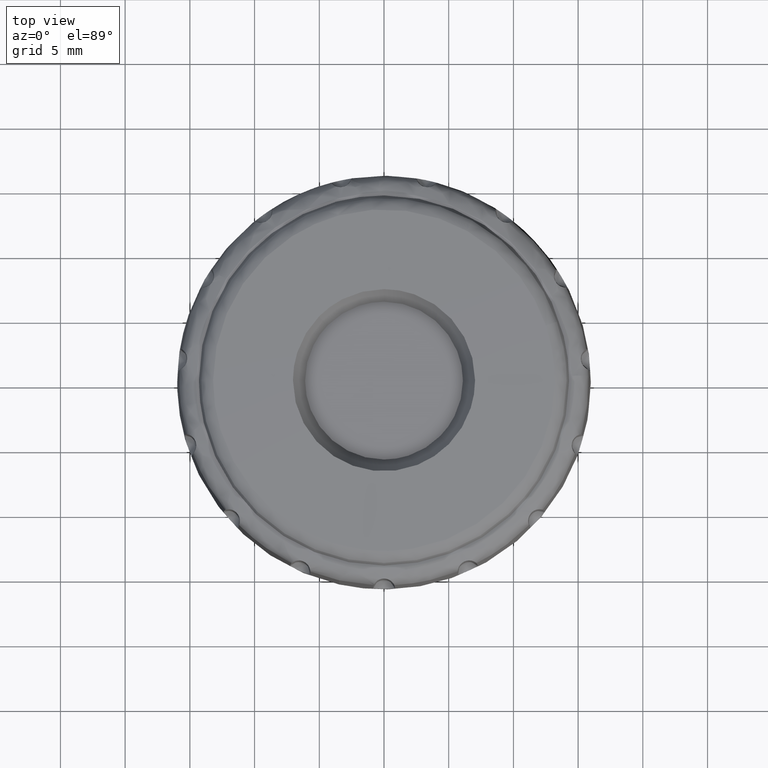
[diagram: clean part render]
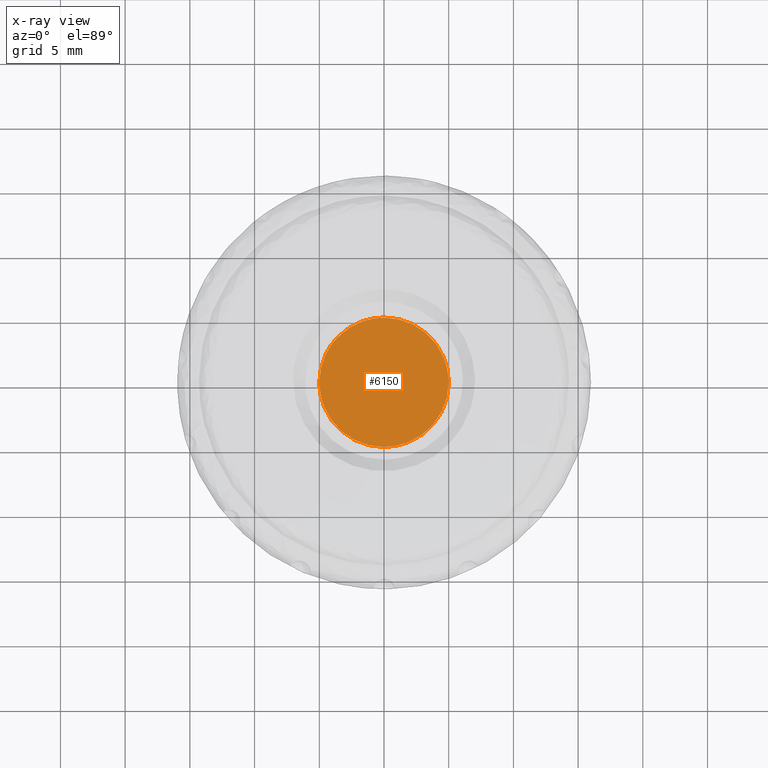
[diagram: x-ray — body ghosted, one internal face saturated and labeled with its STEP entity id]
A machine part, top view, then the same camera in x-ray: the body is ghosted and one INTERNAL B-rep face — a face not visible from any outside direction — is saturated and labeled: STEP entity #6150.
In plain terms, the highlighted face is a freeform B-spline surface patch.
Its self-contained STEP definition (entity closure, byte-faithful):
#778=CARTESIAN_POINT('',(3.228710249739818,3.817778313486623,8.000000000000348));
#779=VERTEX_POINT('',#778);
#780=CARTESIAN_POINT('',(5.0,0.0,8.0));
#781=VERTEX_POINT('',#780);
#782=CARTESIAN_POINT('',(3.228710249739818,3.817778313486623,8.000000000000348));
#783=CARTESIAN_POINT('',(3.513806799405955,3.576764591829799,8.000000000000330));
#784=CARTESIAN_POINT('',(3.935782726697339,3.129772539515676,8.000000000000268));
#785=CARTESIAN_POINT('',(4.360379478321947,2.472427428199671,8.000000000000235));
#786=CARTESIAN_POINT('',(4.656844607909529,1.860864652176387,8.000000000000183));
#787=CARTESIAN_POINT('',(4.920280655042362,1.063340941049201,8.000000000000076));
#788=CARTESIAN_POINT('',(5.000098957304052,0.395947635629116,8.000000000000059));
#789=CARTESIAN_POINT('',(5.0,0.0,8.0));
#790=B_SPLINE_CURVE_WITH_KNOTS('',3,(#782,#783,#784,#785,#786,#787,#788,#789),.UNSPECIFIED.,.F.,.U.,(4,1,1,1,1,4),(8.252083E-009,1.119942009148736,1.832632841419390,2.341696008486545,3.156198976171756,4.344016521158038),.UNSPECIFIED.);
#791=EDGE_CURVE('',#779,#781,#790,.T.);
#862=CARTESIAN_POINT('',(-3.626871762273173,3.441772810342954,7.999999999999861));
#863=VERTEX_POINT('',#862);
#869=CARTESIAN_POINT('',(-5.0,0.0,8.0));
#870=VERTEX_POINT('',#869);
#871=CARTESIAN_POINT('',(-5.0,0.0,8.0));
#872=CARTESIAN_POINT('',(-5.000022463526394,0.286684631884957,8.000000000000011));
#873=CARTESIAN_POINT('',(-4.948853097496818,0.879818888186554,7.999999999999931));
#874=CARTESIAN_POINT('',(-4.708028211113866,1.771114884963028,7.999999999999951));
#875=CARTESIAN_POINT('',(-4.276940450861169,2.654972437554690,7.999999999999926));
#876=CARTESIAN_POINT('',(-3.865077896152885,3.190824343745694,7.999999999999802));
#877=CARTESIAN_POINT('',(-3.626871762273173,3.441772810342954,7.999999999999861));
#878=B_SPLINE_CURVE_WITH_KNOTS('',3,(#871,#872,#873,#874,#875,#876,#877),.UNSPECIFIED.,.F.,.U.,(4,1,1,1,4),(5.754255E-009,0.860053007217219,1.779422123766717,2.758101333729474,3.796096658778904),.UNSPECIFIED.);
#879=EDGE_CURVE('',#870,#863,#878,.T.);
#881=CARTESIAN_POINT('',(-0.000000457430697,-4.999999999999979,8.0));
#882=VERTEX_POINT('',#881);
#883=CARTESIAN_POINT('',(-0.000000457430697,-4.999999999999979,8.0));
#884=CARTESIAN_POINT('',(-0.368160992082342,-5.000063736968510,8.0));
#885=CARTESIAN_POINT('',(-0.930588672243001,-4.937592392165247,7.999999999999989));
#886=CARTESIAN_POINT('',(-1.649437242037373,-4.731484429852639,8.000000000000030));
#887=CARTESIAN_POINT('',(-2.217187332559222,-4.496313996719936,8.000000000000020));
#888=CARTESIAN_POINT('',(-2.902883838422355,-4.105173973454549,7.999999999999937));
#889=CARTESIAN_POINT('',(-3.619311460091449,-3.502355207283775,8.000000000000121));
#890=CARTESIAN_POINT('',(-4.181945395174922,-2.781344216605565,7.999999999999965));
#891=CARTESIAN_POINT('',(-4.525875550511583,-2.151816606957541,7.999999999999996));
#892=CARTESIAN_POINT('',(-4.778789264142858,-1.525043480700818,8.000000000000012));
#893=CARTESIAN_POINT('',(-4.955854981437827,-0.818117920537843,7.999999999999996));
#894=CARTESIAN_POINT('',(-5.000016850392870,-0.265887692550384,8.000000000000002));
#895=CARTESIAN_POINT('',(-5.0,0.0,8.0));
#896=B_SPLINE_CURVE_WITH_KNOTS('',3,(#883,#884,#885,#886,#887,#888,#889,#890,#891,#892,#893,#894,#895),.UNSPECIFIED.,.F.,.U.,(4,1,1,1,1,1,1,1,1,1,4),(0.000000023810178,1.104463664657552,1.687380168559566,2.239617713600641,2.945253200981825,4.049707247228225,5.031459218124144,5.675736256842807,6.197294649497587,7.056330579127309,7.853993696777113),.UNSPECIFIED.);
#897=EDGE_CURVE('',#882,#870,#896,.T.);
#899=CARTESIAN_POINT('',(5.0,0.0,8.0));
#900=CARTESIAN_POINT('',(5.000040769303047,-0.327251661271573,8.0));
#901=CARTESIAN_POINT('',(4.946591481785716,-0.869240782937516,7.999999999999970));
#902=CARTESIAN_POINT('',(4.737851105844543,-1.651446898429953,8.000000000000039));
#903=CARTESIAN_POINT('',(4.479166213769916,-2.254921356063819,7.999999999999982));
#904=CARTESIAN_POINT('',(4.128232254582548,-2.844501768785502,8.000000000000030));
#905=CARTESIAN_POINT('',(3.737092548190788,-3.345705083344599,7.999999999999921));
#906=CARTESIAN_POINT('',(3.266266025559543,-3.802288333302537,8.000000000000073));
#907=CARTESIAN_POINT('',(2.710616120596720,-4.222385853665635,8.000000000000021));
#908=CARTESIAN_POINT('',(1.973267974629517,-4.628275496996692,7.999999999999989));
#909=CARTESIAN_POINT('',(1.032872295102081,-4.929358941569585,7.999999999999986));
#910=CARTESIAN_POINT('',(0.337475465053595,-5.000036069519211,8.000000000000005));
#911=CARTESIAN_POINT('',(-0.000000457430697,-4.999999999999979,8.0));
#912=B_SPLINE_CURVE_WITH_KNOTS('',3,(#899,#900,#901,#902,#903,#904,#905,#906,#907,#908,#909,#910,#911),.UNSPECIFIED.,.F.,.U.,(4,1,1,1,1,1,1,1,1,1,4),(0.000000023771619,0.981747407138386,1.626020984093533,2.423696079229835,2.945253394398204,3.681572786719506,4.325831309596150,4.908742182407487,5.767777139838947,6.841568395970230,7.853994212408934),.UNSPECIFIED.);
#913=EDGE_CURVE('',#781,#882,#912,.T.);
#932=CARTESIAN_POINT('',(0.000000457430667,4.999999999999980,8.0));
#933=VERTEX_POINT('',#932);
#934=CARTESIAN_POINT('',(0.000000457430667,4.999999999999980,8.0));
#935=CARTESIAN_POINT('',(0.383913843285780,5.000082125789250,8.000000000000016));
#936=CARTESIAN_POINT('',(0.950587004179151,4.934397960124819,8.000000000000121));
#937=CARTESIAN_POINT('',(1.706054079522867,4.712878791181877,8.000000000000151));
#938=CARTESIAN_POINT('',(2.429875804223070,4.401907152338942,8.000000000000330));
#939=CARTESIAN_POINT('',(2.935619973907810,4.065741361839711,8.000000000000243));
#940=CARTESIAN_POINT('',(3.228710249739818,3.817778313486623,8.000000000000348));
#941=B_SPLINE_CURVE_WITH_KNOTS('',3,(#934,#935,#936,#937,#938,#939,#940),.UNSPECIFIED.,.F.,.U.,(4,1,1,1,4),(1.923259E-009,1.151717635920551,1.700152376419880,2.358272977210379,3.509990677198866),.UNSPECIFIED.);
#942=EDGE_CURVE('',#933,#779,#941,.T.);
#944=CARTESIAN_POINT('',(-3.626871762273173,3.441772810342954,7.999999999999861));
#945=CARTESIAN_POINT('',(-3.466847129338353,3.610416228288869,7.999999999999877));
#946=CARTESIAN_POINT('',(-3.115406973439549,3.932481327420327,7.999999999999876));
#947=CARTESIAN_POINT('',(-2.485431656838774,4.362733185334861,7.999999999999923));
#948=CARTESIAN_POINT('',(-1.813920202769380,4.679396809328988,7.999999999999840));
#949=CARTESIAN_POINT('',(-0.972171147461204,4.932109140542441,8.000000000000027));
#950=CARTESIAN_POINT('',(-0.380436837137010,5.000087010135756,7.999999999999959));
#951=CARTESIAN_POINT('',(0.000000457430667,4.999999999999980,8.0));
#952=B_SPLINE_CURVE_WITH_KNOTS('',3,(#944,#945,#946,#947,#948,#949,#950,#951),.UNSPECIFIED.,.F.,.U.,(4,1,1,1,1,4),(7.093618E-009,0.697450698704231,1.426608017767752,2.282561389722358,2.916613090523155,4.057897704618477),.UNSPECIFIED.);
#953=EDGE_CURVE('',#863,#933,#952,.T.);
#6137=CARTESIAN_POINT('',(-5.499499980618060,-5.499499980618037,8.0));
#6138=CARTESIAN_POINT('',(5.499500248838961,-5.499499980618037,8.0));
#6139=CARTESIAN_POINT('',(-5.499499980618060,5.499500248838939,8.0));
#6140=CARTESIAN_POINT('',(5.499500248838961,5.499500248838939,8.0));
#6141=B_SPLINE_SURFACE_WITH_KNOTS('',1,1,((#6137,#6139),(#6138,#6140)),.UNSPECIFIED.,.F.,.F.,.U.,(2,2),(2,2),(0.0,10.999000229457019),(0.0,10.999000229456980),.UNSPECIFIED.);
#6142=ORIENTED_EDGE('',*,*,#913,.T.);
#6143=ORIENTED_EDGE('',*,*,#897,.T.);
#6144=ORIENTED_EDGE('',*,*,#879,.T.);
#6145=ORIENTED_EDGE('',*,*,#953,.T.);
#6146=ORIENTED_EDGE('',*,*,#942,.T.);
#6147=ORIENTED_EDGE('',*,*,#791,.T.);
#6148=EDGE_LOOP('',(#6142,#6143,#6144,#6145,#6146,#6147));
#6149=FACE_OUTER_BOUND('',#6148,.T.);
#6150=ADVANCED_FACE('',(#6149),#6141,.F.);